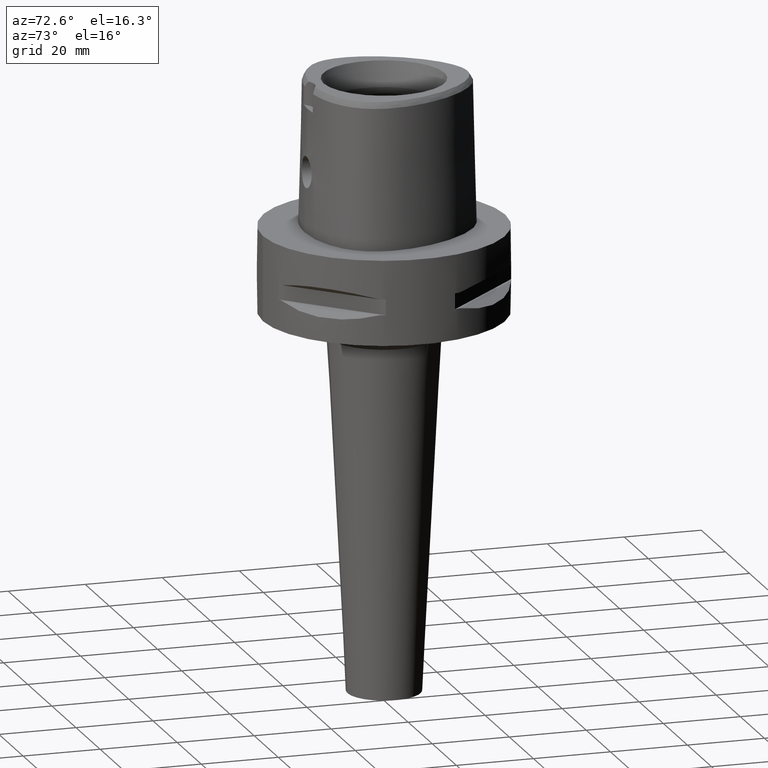
[diagram: clean part render]
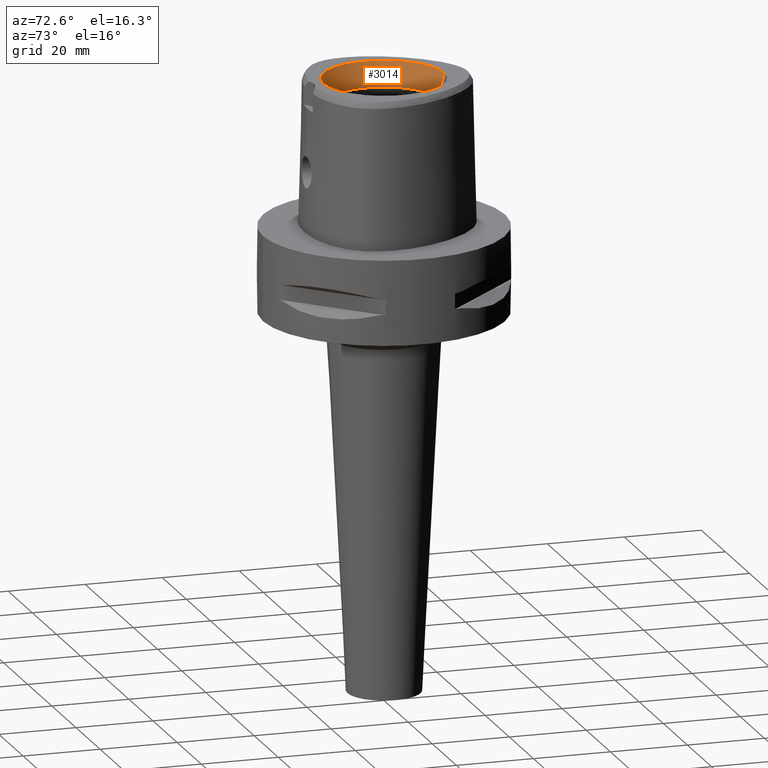
[diagram: same view with one face highlighted and labeled with its STEP entity id]
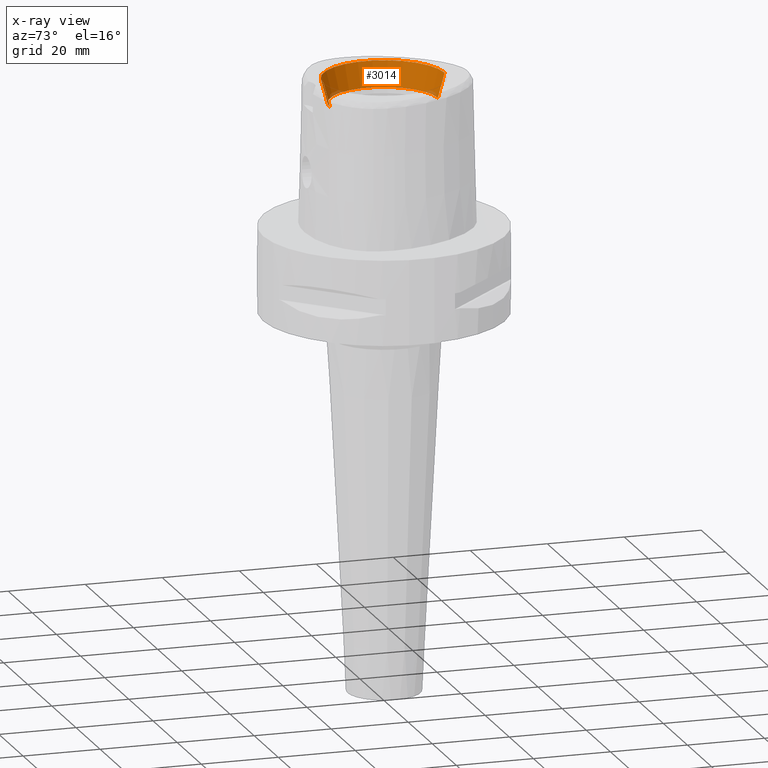
[diagram: x-ray of the same camera — body ghosted, the highlighted face saturated]
A machine part, auxiliary view. The second image highlights one B-rep face of the part: STEP entity #3014.
The next image is the same camera in x-ray: the body ghosted, the highlighted face saturated — about 2% of this face is hidden behind the body in this view.
In plain terms, the highlighted conical surface has half-angle 15 deg.
Its self-contained STEP definition (entity closure, byte-faithful):
#116=CARTESIAN_POINT('',(0.E0,0.E0,3.8E1));
#117=DIRECTION('',(0.E0,0.E0,1.E0));
#118=DIRECTION('',(0.E0,1.E0,0.E0));
#119=AXIS2_PLACEMENT_3D('',#116,#117,#118);
#1160=CARTESIAN_POINT('',(0.E0,0.E0,3.16E1));
#1161=DIRECTION('',(0.E0,0.E0,1.E0));
#1162=DIRECTION('',(0.E0,1.E0,0.E0));
#1163=AXIS2_PLACEMENT_3D('',#1160,#1161,#1162);
#1168=DIRECTION('',(0.E0,-2.588190451026E-1,9.659258262891E-1));
#1169=VECTOR('',#1168,6.625767554625E0);
#1170=CARTESIAN_POINT('',(0.E0,-1.4E1,3.16E1));
#1171=LINE('',#1170,#1169);
#1183=DIRECTION('',(0.E0,2.588190451026E-1,9.659258262891E-1));
#1184=VECTOR('',#1183,6.625767554625E0);
#1185=CARTESIAN_POINT('',(0.E0,1.4E1,3.16E1));
#1186=LINE('',#1185,#1184);
#1453=CARTESIAN_POINT('',(0.E0,1.571487483156E1,3.8E1));
#1454=CARTESIAN_POINT('',(0.E0,-1.571487483156E1,3.8E1));
#1455=VERTEX_POINT('',#1453);
#1456=VERTEX_POINT('',#1454);
#1605=CARTESIAN_POINT('',(0.E0,-1.4E1,3.16E1));
#1606=VERTEX_POINT('',#1605);
#1607=CARTESIAN_POINT('',(0.E0,1.4E1,3.16E1));
#1608=VERTEX_POINT('',#1607);
#3001=CARTESIAN_POINT('',(0.E0,0.E0,3.48E1));
#3002=DIRECTION('',(0.E0,0.E0,1.E0));
#3003=DIRECTION('',(0.E0,1.E0,0.E0));
#3004=AXIS2_PLACEMENT_3D('',#3001,#3002,#3003);
#3005=CONICAL_SURFACE('',#3004,1.485743741578E1,1.5E1);
#3006=ORIENTED_EDGE('',*,*,#1624,.F.);
#3008=ORIENTED_EDGE('',*,*,#3007,.F.);
#3009=ORIENTED_EDGE('',*,*,#2994,.T.);
#3011=ORIENTED_EDGE('',*,*,#3010,.T.);
#3012=EDGE_LOOP('',(#3006,#3008,#3009,#3011));
#3013=FACE_OUTER_BOUND('',#3012,.F.);
#120=CIRCLE('',#119,1.571487483156E1);
#1164=CIRCLE('',#1163,1.4E1);
#1624=EDGE_CURVE('',#1455,#1456,#120,.T.);
#2994=EDGE_CURVE('',#1608,#1606,#1164,.T.);
#3007=EDGE_CURVE('',#1608,#1455,#1186,.T.);
#3010=EDGE_CURVE('',#1606,#1456,#1171,.T.);
#3014=ADVANCED_FACE('',(#3013),#3005,.F.);